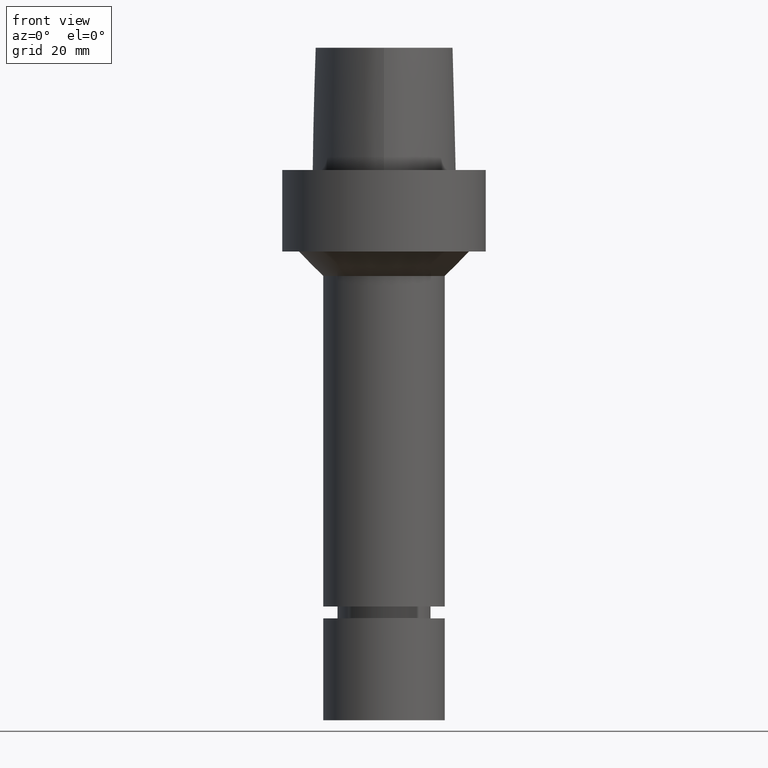
[diagram: clean part render]
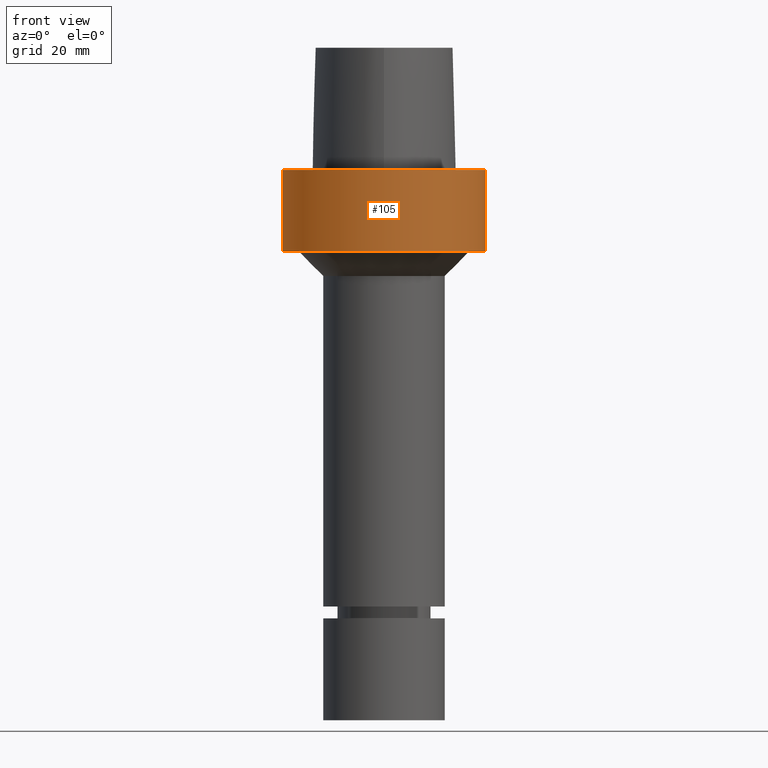
[diagram: same view with one face highlighted and labeled with its STEP entity id]
A machine part, front view. The second image highlights one B-rep face of the part: STEP entity #105.
In plain terms, the highlighted cylindrical surface (bore or boss wall) has radius 25 mm, axis along (0, 0, -1).
Its self-contained STEP definition (entity closure, byte-faithful):
#105=ADVANCED_FACE('Unnamed[1]',(#226,#227),#228,.T.);
#107=EDGE_CURVE('Unnamed[1]',#230,#230,#231,.T.);
#123=EDGE_CURVE('Unnamed[1]',#254,#254,#255,.T.);
#226=FACE_BOUND('',#902,.T.);
#227=FACE_BOUND('',#903,.T.);
#228=CYLINDRICAL_SURFACE('',#904,25.0);
#230=VERTEX_POINT('',#907);
#231=CIRCLE('',#908,25.0);
#254=VERTEX_POINT('',#940);
#255=CIRCLE('',#941,25.0);
#902=EDGE_LOOP('',(#1043));
#903=EDGE_LOOP('',(#1044));
#904=AXIS2_PLACEMENT_3D('',#1045,#1046,#1047);
#907=CARTESIAN_POINT('',(-3.08148791101958E-031,25.0,3.06161699786838E-015));
#908=AXIS2_PLACEMENT_3D('',#1048,#1049,#1050);
#940=CARTESIAN_POINT('',(1.22464679914735E-015,25.0,-20.0));
#941=AXIS2_PLACEMENT_3D('',#1074,#1075,#1076);
#1043=ORIENTED_EDGE('',*,*,#123,.F.);
#1044=ORIENTED_EDGE('',*,*,#107,.T.);
#1045=CARTESIAN_POINT('',(6.12323399573677E-016,1.22464679914735E-015,-10.0));
#1046=DIRECTION('',(6.12323399573677E-017,1.22464679914735E-016,-1.0));
#1047=DIRECTION('',(-1.23259516440783E-032,1.0,1.22464679914735E-016));
#1048=CARTESIAN_POINT('',(0.0,0.0,0.0));
#1049=DIRECTION('',(6.12323399573677E-017,1.22464679914735E-016,-1.0));
#1050=DIRECTION('',(-1.23259516440783E-032,1.0,1.22464679914735E-016));
#1074=CARTESIAN_POINT('',(1.22464679914735E-015,2.44929359829471E-015,-20.0));
#1075=DIRECTION('',(6.12323399573677E-017,1.22464679914735E-016,-1.0));
#1076=DIRECTION('',(-1.23259516440783E-032,1.0,1.22464679914735E-016));